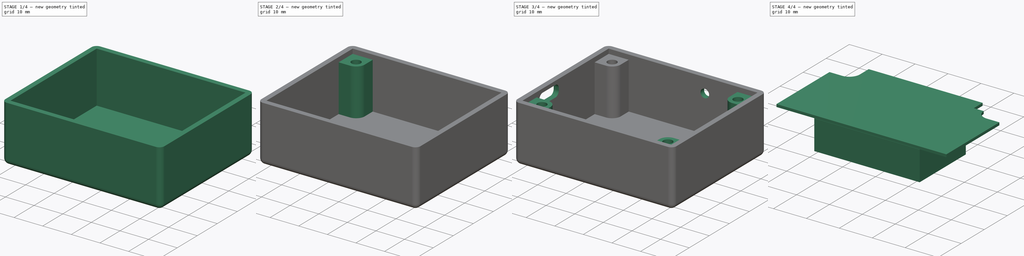
[diagram: build sequence overview — one tinted view per stage of 4, left to right]
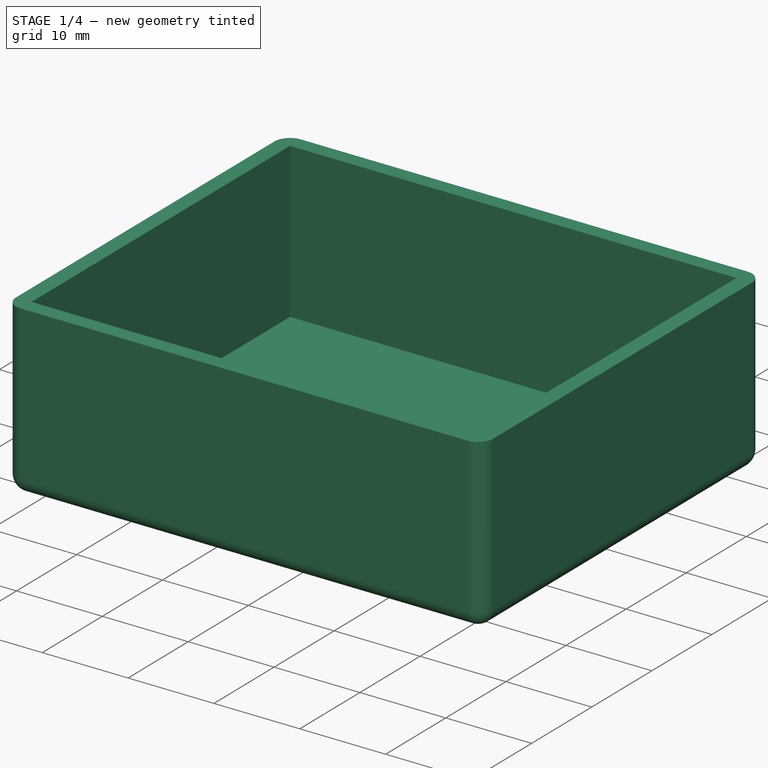
[diagram: stage 1 of 4 — iso view after this stage's code; geometry added in this stage tinted green]
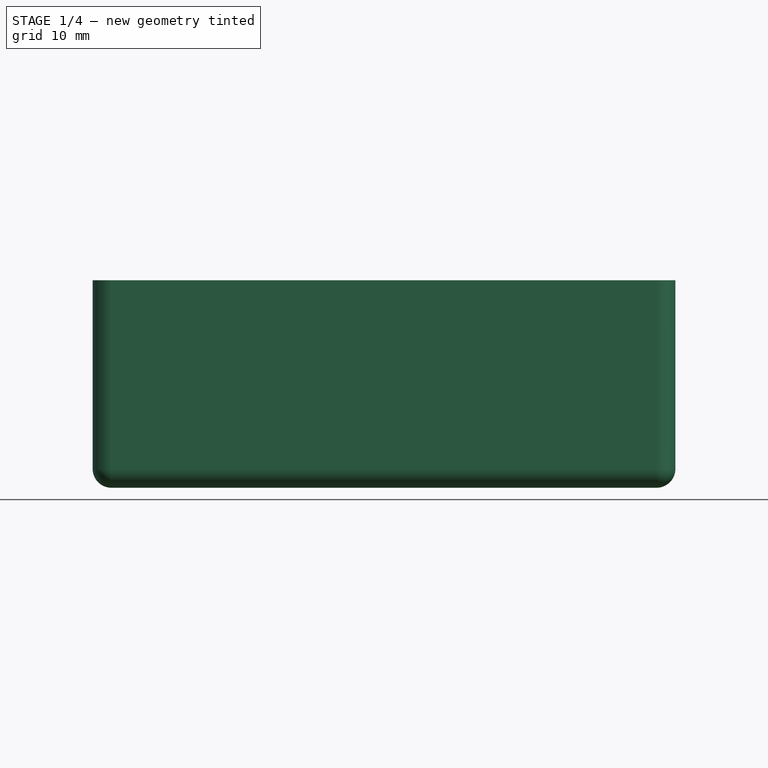
[diagram: stage 1 of 4 — front view after this stage's code; geometry added in this stage tinted green]
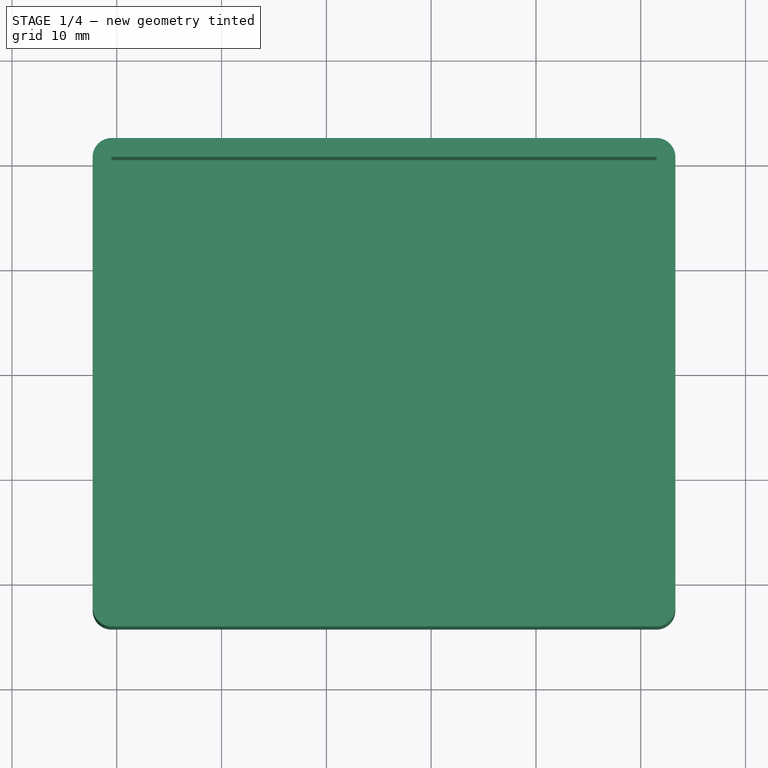
[diagram: stage 1 of 4 — top view after this stage's code; geometry added in this stage tinted green]
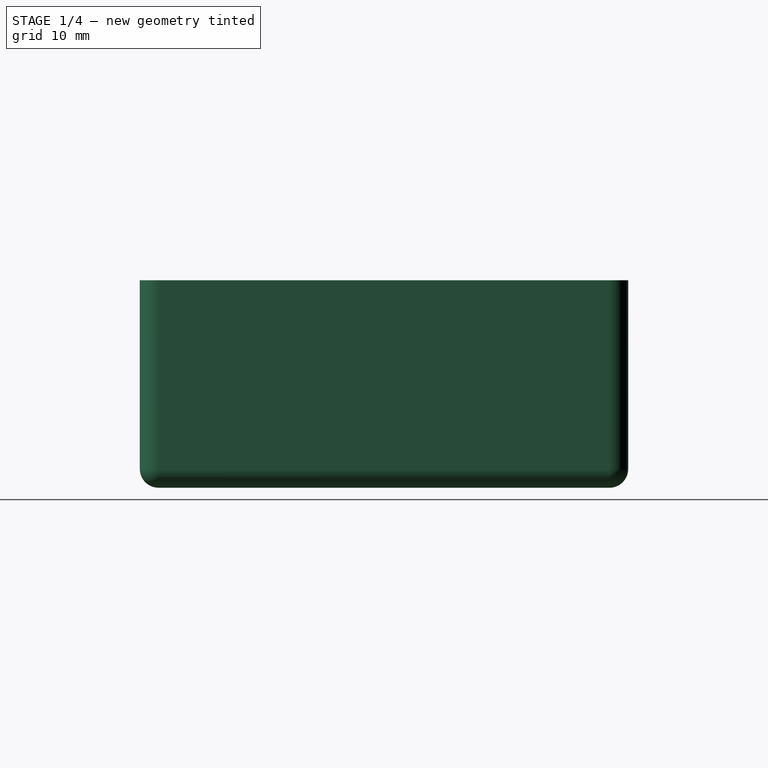
[diagram: stage 1 of 4 — right view after this stage's code; geometry added in this stage tinted green]
FCSTD DOCUMENT  (FreeCAD 0.20R29603 (Git))
Label: SCuSA_RevB1_case
License: All rights reserved
LicenseURL: http://en.wikipedia.org/wiki/All_rights_reserved
objects: Sketcher::SketchObject×6, PartDesign::SubShapeBinder×4, PartDesign::Pad×3, PartDesign::Pocket×3, PartDesign::Plane×2, PartDesign::Mirrored×2, PartDesign::Body×2, Spreadsheet::Sheet×1, App::Link×1, PartDesign::Thickness×1, Part::Box×1, PartDesign::MultiTransform×1
note: 32 computed .brp shape members not serialized (recipe doc carries the construction recipe); baked Part::Feature solids carry a one-line shape summary decoded from their .brp
EXTERNAL_REF file=SCuSA_RevB1_PCBA.FCStd obj=Board_3e51

FEATURE [Spreadsheet::Sheet] Spreadsheet
  cells = A1=layer_height; B1(layer_height)=0.4; C1=for 3d printing; A2=wall_thickness; B2(wall_thickness)=1.8; A3=pcb_to_wall_clearance; B3(pcb_to_wall_clearance)=0.5; A4=pcb_thickness; B4(pcb_thickness)=1.65; A5=case_bottom_height; B5(case_bottom_height)=18; A6=hex_nut_diameter; B6(hex_nut_diameter)=7.2; A7=hex_nut_pocket_depth; B7(hex_nut_pocket_depth)=10; A8=lid_counter_sunk; B8(lid_counter_sunk)=0.8; A9=lid_layer_height; B9(lid_layer_height)=0.2
FEATURE [App::Link] Link  label="SCuSA"
  LinkPlacement = pos=(0,0,-1.65) rot=(1,0,0;3.14159rad)
  LinkedObject = -> <external SCuSA_RevB1_PCBA.FCStd>#Board_3e51
  Placement = pos=(0,0,-1.65) rot=(1,0,0;3.14159rad)
  expr: .Placement.Base.z = -Spreadsheet.pcb_thickness
FEATURE [PartDesign::SubShapeBinder] Binder  label="PCBBinder"
  BindCopyOnChange = 0
  BindMode = 0
  ClaimChildren = false
  Context = -> Body [Binder.]
  Fuse = false
  MakeFace = true
  OffsetFill = false
  OffsetIntersection = false
  OffsetJoinType = 0
  OffsetOpenResult = false
  PartialLoad = false
  Relative = true
  Support = -> [Link[Board_Geoms_3e51.Pcb_3e51.Face64]]
  _Version = 2
FEATURE [Sketcher::SketchObject] Sketch  label="InnerWallsSketch"
  ExternalGeometry = -> [Binder]
  FullyConstrained = true
  MapMode = 5
  Support = -> [XY_Plane]
  expr: Constraints[21] = Spreadsheet.pcb_to_wall_clearance
  sketch-geometry (8):
    g0: LineSegment StartX=-0.5 StartY=0.5 StartZ=0 EndX=51.5 EndY=0.5 EndZ=0
    g1: LineSegment StartX=51.5 StartY=0.5 StartZ=0 EndX=51.5 EndY=-42.5 EndZ=0
    g2: LineSegment StartX=51.5 StartY=-42.5 StartZ=0 EndX=-0.5 EndY=-42.5 EndZ=0
    g3: LineSegment StartX=-0.5 StartY=-42.5 StartZ=0 EndX=-0.5 EndY=0.5 EndZ=0
    g4: LineSegment StartX=51 StartY=-42 StartZ=0 EndX=51.5 EndY=-42 EndZ=0
    g5: LineSegment StartX=51 StartY=-42.5 StartZ=0 EndX=51 EndY=-42 EndZ=0
    g6: LineSegment StartX=0 StartY=0 StartZ=0 EndX=-0.5 EndY=0 EndZ=0
    g7: LineSegment StartX=0 StartY=0.5 StartZ=0 EndX=0 EndY=0 EndZ=0
  constraints (24):
    c: Coincident(g0,g1)
    c: Coincident(g1,g2)
    c: Coincident(g2,g3)
    c: Coincident(g3,g0)
    c: Horizontal(g0)
    c: Horizontal(g2)
    c: Vertical(g1)
    c: Vertical(g3)
    c: PointOnObject(g4,g1)
    c: Horizontal(g4)
    c: PointOnObject(g5,g2)
    c: Coincident(g5,g4)
    c: Coincident(g6,g-6)
    c: PointOnObject(g6,g3)
    c: Horizontal(g6)
    c: PointOnObject(g7,g0)
    c: Coincident(g7,g6)
    c: Vertical(g7)
    c: Equal(g4,g5)
    c: Equal(g5,g6)
    c: Equal(g6,g7)
    c: DistanceX(g6,g6) = 0.5
    c: Coincident(g4,g-4)
    c: Vertical(g5)
FEATURE [PartDesign::Pad] Pad  label="InnerWallsPad"
  Direction = (0,0,1)
  Length = 18
  Length2 = 10
  Profile = -> Sketch
  ReferenceAxis = -> Sketch [N_Axis]
  Reversed = true
  Type = 0
  expr: Length = Spreadsheet.case_bottom_height
FEATURE [PartDesign::Thickness] Thickness  label="OuterWallsThickness"
  Base = -> Pad [Face5]
  BaseFeature = -> Pad
  Intersection = false
  Join = 0
  Mode = 0
  SupportTransform = false
  Value = 1.8
  expr: Value = Spreadsheet.wall_thickness
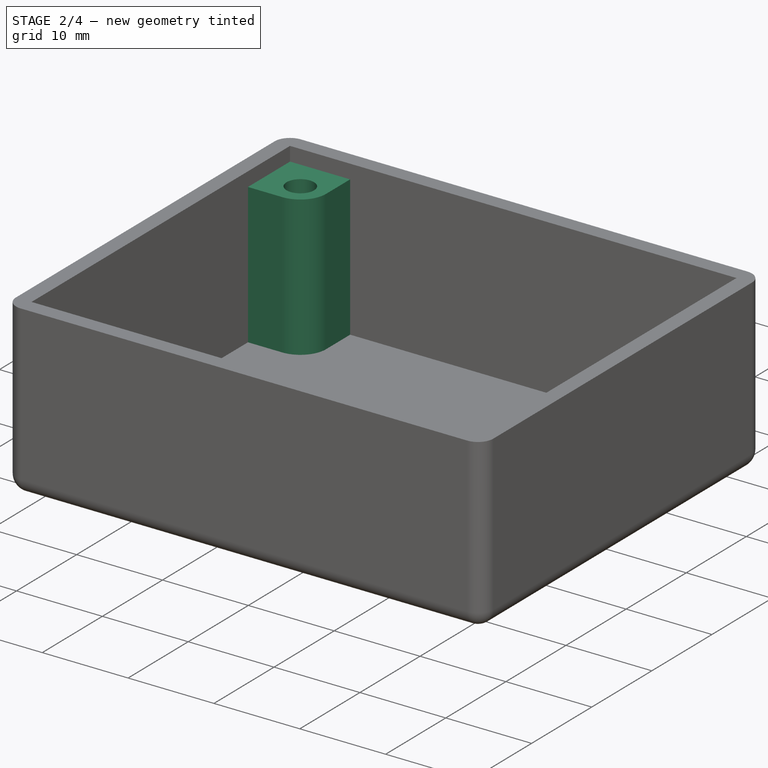
[diagram: stage 2 of 4 — iso view after this stage's code; geometry added in this stage tinted green]
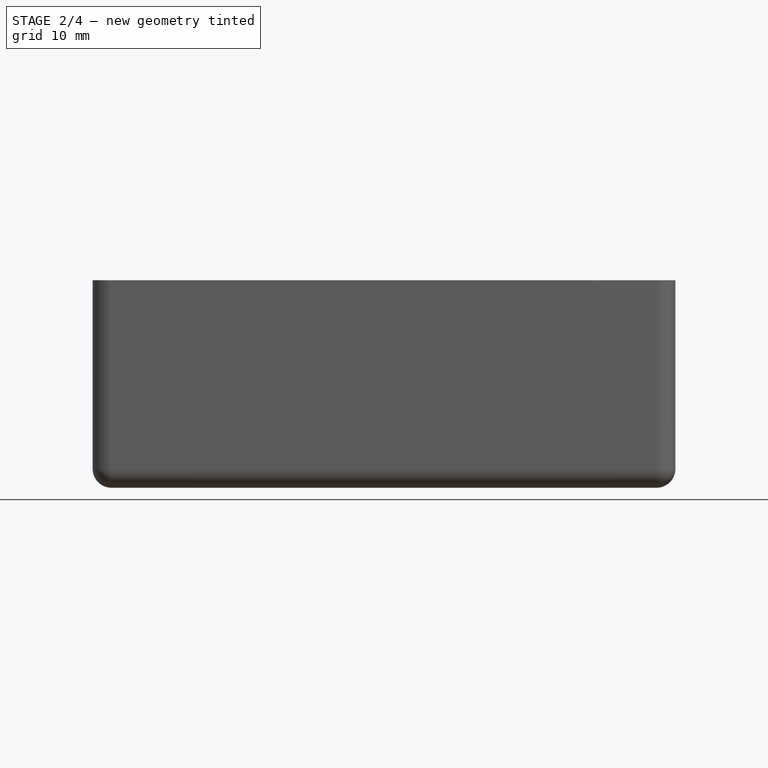
[diagram: stage 2 of 4 — front view after this stage's code; geometry added in this stage tinted green]
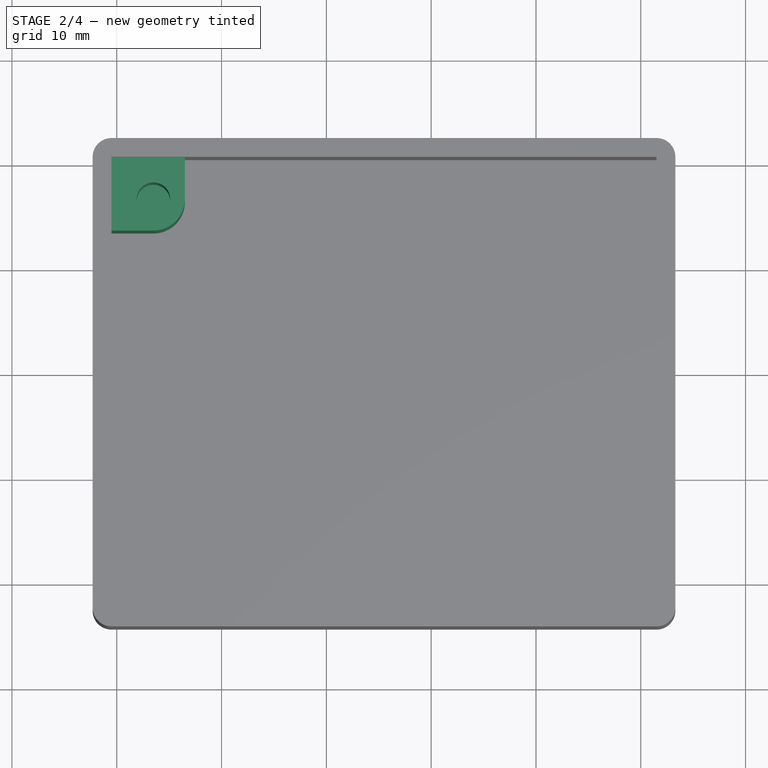
[diagram: stage 2 of 4 — top view after this stage's code; geometry added in this stage tinted green]
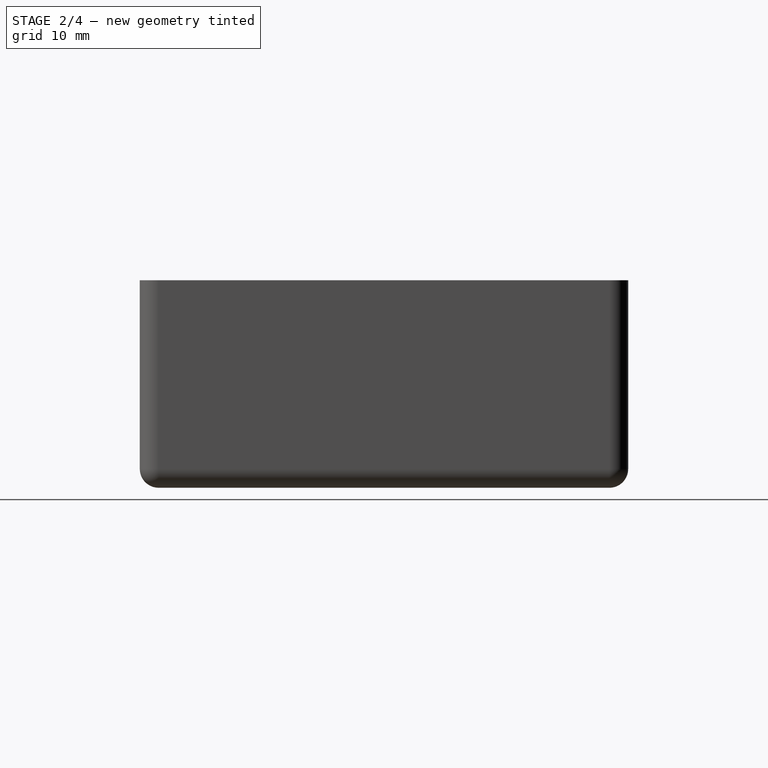
[diagram: stage 2 of 4 — right view after this stage's code; geometry added in this stage tinted green]
FEATURE [Sketcher::SketchObject] Sketch001  label="PCBSupportSketch"
  AttachmentOffset = pos=(0,0,-18) rot=(0,0,1;0rad)
  ExternalGeometry = -> [Thickness,Binder]
  FullyConstrained = true
  MapMode = 5
  Placement = pos=(0,0,-18) rot=(0,0,1;0rad)
  Support = -> [XY_Plane]
  expr: .AttachmentOffset.Base.z = -Spreadsheet.case_bottom_height
  sketch-geometry (5):
    g0: ArcOfCircle CenterX=3.5 CenterY=-3.5 CenterZ=0 NormalX=0 NormalY=0 NormalZ=1 AngleXU=0 Radius=3 StartAngle=4.71239 EndAngle=6.28319
    g1: LineSegment StartX=3.5 StartY=-6.5 StartZ=0 EndX=-0.5 EndY=-6.5 EndZ=0
    g2: LineSegment StartX=6.5 StartY=-3.5 StartZ=0 EndX=6.5 EndY=0.5 EndZ=0
    g3: LineSegment StartX=-0.5 StartY=-6.5 StartZ=0 EndX=-0.5 EndY=0.5 EndZ=0
    g4: LineSegment StartX=-0.5 StartY=0.5 StartZ=0 EndX=6.5 EndY=0.5 EndZ=0
  constraints (14):
    c: Coincident(g1,g0)
    c: PointOnObject(g1,g-4)
    c: Horizontal(g1)
    c: Coincident(g2,g0)
    c: PointOnObject(g2,g-3)
    c: Vertical(g2)
    c: Equal(g2,g1)
    c: Coincident(g0,g-5)
    c: Angle(g0) = 1.5708
    c: Radius(g0) = 3
    c: Coincident(g3,g1)
    c: Coincident(g3,g-4)
    c: Coincident(g4,g3)
    c: Coincident(g4,g2)
FEATURE [PartDesign::Plane] DatumPlane  label="MirrorXDatumPlane"
  AttachmentOffset = pos=(0,0,0) rot=(1,0,0;1.5708rad)
  Length = 78.5758
  MapMode = 45
  Placement = pos=(25.5,-21,-0.05) rot=(0.57735,0.57735,0.57735;2.0944rad)
  ResizeMode = 0
  Support = -> [Binder]
  Width = 61.5758
FEATURE [PartDesign::Plane] DatumPlane001  label="MirrorYDatumPlane"
  AttachmentOffset = pos=(0,0,0) rot=(0,1,0;1.5708rad)
  Length = 62.3288
  MapMode = 45
  Placement = pos=(25.5,-21,-0.05) rot=(-0.57735,0.57735,0.57735;2.0944rad)
  ResizeMode = 0
  Support = -> [Binder]
  Width = 88.3288
FEATURE [PartDesign::Pad] Pad001  label="PCBSupportPad"
  BaseFeature = -> Thickness
  Direction = (0,0,1)
  Length = 16.35
  Length2 = 10
  Profile = -> Sketch001
  ReferenceAxis = -> Sketch001 [N_Axis]
  Type = 0
  expr: Length = Spreadsheet.case_bottom_height - Spreadsheet.pcb_thickness
FEATURE [Sketcher::SketchObject] Sketch002  label="ScrewHoleSketch"
  ExternalGeometry = -> [Binder]
  FullyConstrained = true
  MapMode = 5
  Support = -> [XY_Plane]
  sketch-geometry (1):
    g0: Circle CenterX=3.5 CenterY=-3.5 CenterZ=0 NormalX=0 NormalY=0 NormalZ=1 AngleXU=0 Radius=1.6
  constraints (2):
    c: Coincident(g0,g-4)
    c: PointOnObject(g-3,g0)
FEATURE [PartDesign::Pocket] Pocket  label="ScrewHolePocket"
  BaseFeature = -> Pad001
  Direction = (0,0,-1)
  Length = 15
  Length2 = 5
  Profile = -> Sketch002
  ReferenceAxis = -> Sketch002 [N_Axis]
  Type = 0
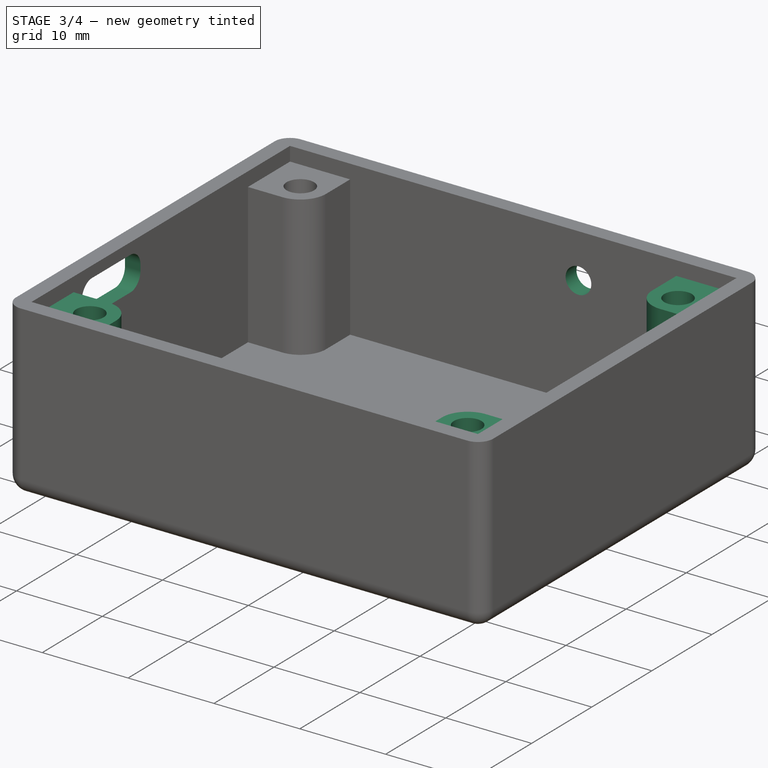
[diagram: stage 3 of 4 — iso view after this stage's code; geometry added in this stage tinted green]
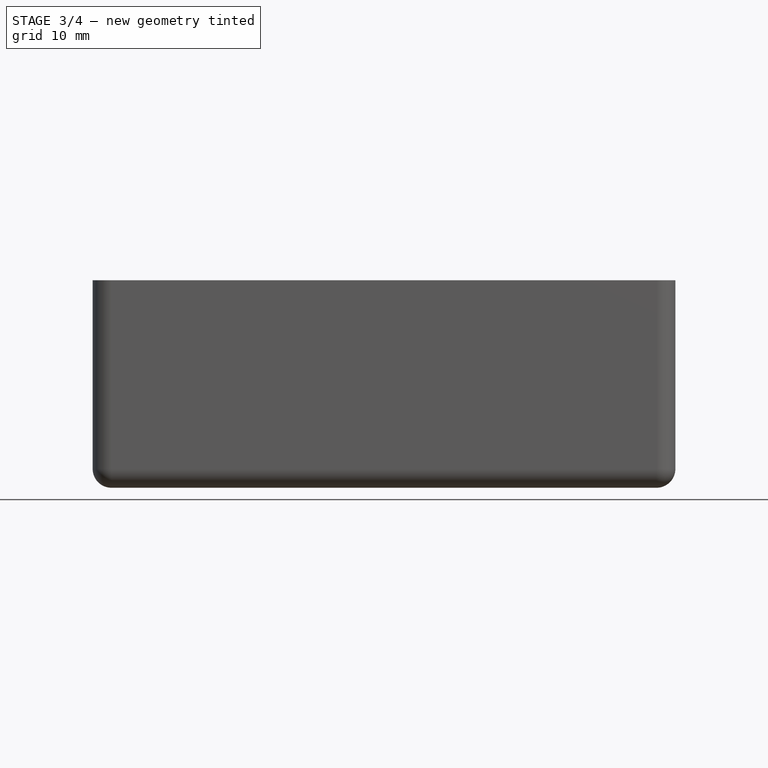
[diagram: stage 3 of 4 — front view after this stage's code; geometry added in this stage tinted green]
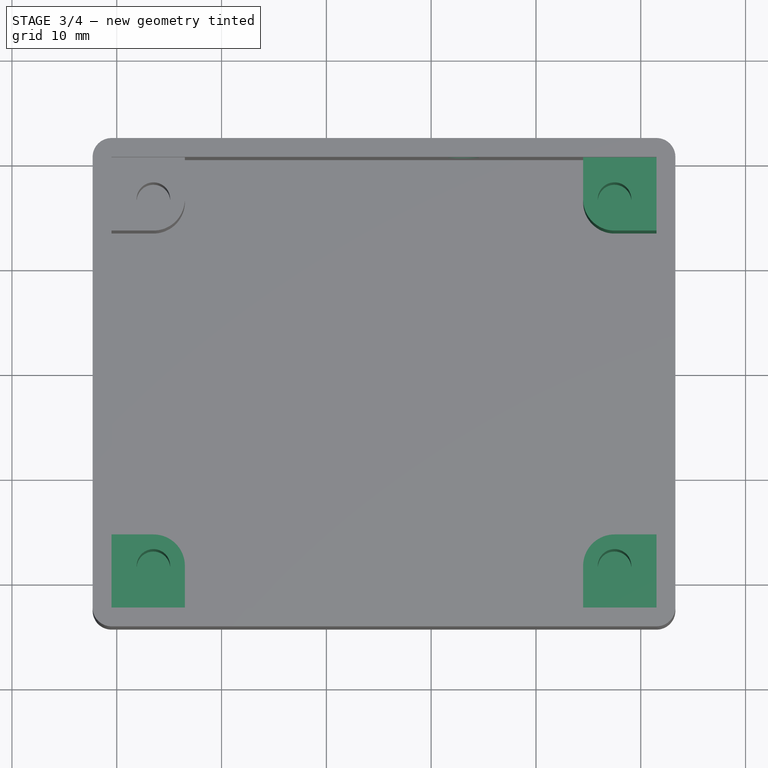
[diagram: stage 3 of 4 — top view after this stage's code; geometry added in this stage tinted green]
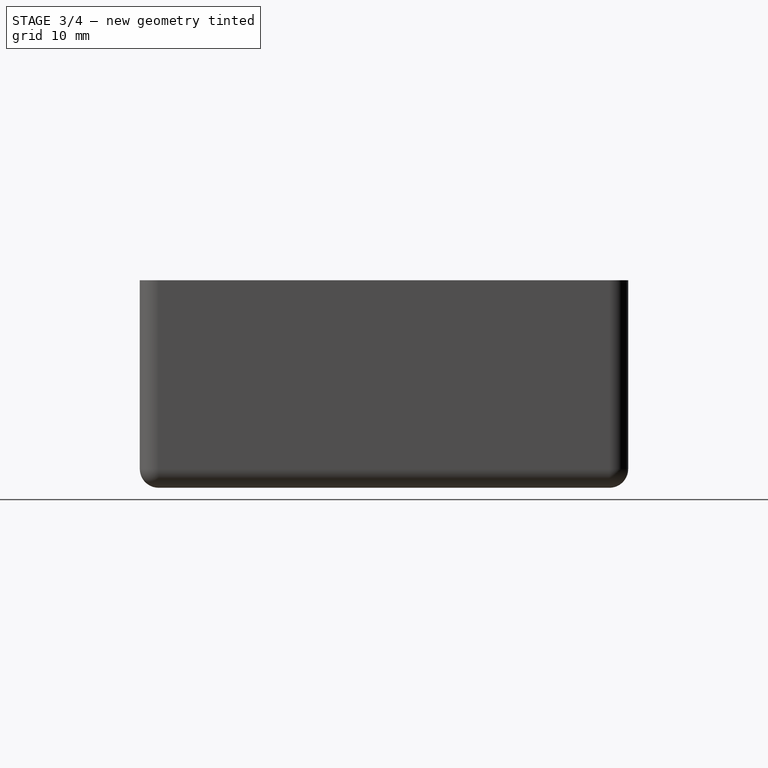
[diagram: stage 3 of 4 — right view after this stage's code; geometry added in this stage tinted green]
FEATURE [PartDesign::Mirrored] Mirrored
  MirrorPlane = -> DatumPlane
FEATURE [PartDesign::Mirrored] Mirrored001
  MirrorPlane = -> DatumPlane001
FEATURE [PartDesign::MultiTransform] MultiTransform
  BaseFeature = -> Pocket
  Originals = -> [Pad001,Pocket]
  Transformations = -> [Mirrored,Mirrored001]
FEATURE [PartDesign::SubShapeBinder] Binder001  label="USBBinder"
  BindCopyOnChange = 0
  BindMode = 0
  ClaimChildren = false
  Context = -> Body [Binder001.]
  Fuse = false
  MakeFace = true
  OffsetFill = false
  OffsetIntersection = false
  OffsetJoinType = 0
  OffsetOpenResult = false
  PartialLoad = false
  Relative = true
  Support = -> [Link[Step_Models_3e51.Top_3e51.USB4135_GF_A.Part__Feature.Edge799,Step_Models_3e51.Top_3e51.USB4135_GF_A.Part__Feature.Edge882,Step_Models_3e51.Top_3e51.USB4135_GF_A.Part__Feature.Edge795,Step_Models_3e51.Top_3e51.USB4135_GF_A.Part__Feature.Edge881,Step_Models_3e51.Top_3e51.USB4135_GF_A.Part__Feature.Edge704,Step_Models_3e51.Top_3e51.USB4135_GF_A.Part__Feature.Edge569,Step_Models_3e51.Top_3e51.USB4135_GF_A.Part__Feature.Edge602,Step_Models_3e51.Top_3e51.USB4135_GF_A.Part__Feature.Edge714]]
  _Version = 2
FEATURE [Sketcher::SketchObject] Sketch003  label="USBSketch"
  ExternalGeometry = -> [Binder001]
  FullyConstrained = true
  MapMode = 5
  Placement = pos=(0,0,0) rot=(0.57735,0.57735,0.57735;2.0944rad)
  Support = -> [YZ_Plane]
  sketch-geometry (16):
    g0: ArcOfCircle CenterX=-32.44 CenterY=-3.005 CenterZ=0 NormalX=0 NormalY=0 NormalZ=1 AngleXU=0 Radius=1.68 StartAngle=1.5708 EndAngle=3.14159
    g1: ArcOfCircle CenterX=-32.47 CenterY=-3.635 CenterZ=0 NormalX=0 NormalY=0 NormalZ=1 AngleXU=0 Radius=1.65 StartAngle=3.14159 EndAngle=4.71239
    g2: ArcOfCircle CenterX=-26.03 CenterY=-3.635 CenterZ=0 NormalX=0 NormalY=0 NormalZ=1 AngleXU=0 Radius=1.65 StartAngle=4.71239 EndAngle=6.28319
    g3: ArcOfCircle CenterX=-26.06 CenterY=-3.005 CenterZ=0 NormalX=0 NormalY=0 NormalZ=1 AngleXU=0 Radius=1.68 StartAngle=1e-16 EndAngle=1.5708
    g4: LineSegment StartX=-32.44 StartY=-1.725 StartZ=0 EndX=-32.44 EndY=-1.325 EndZ=0
    g5: LineSegment StartX=-32.47 StartY=-4.885 StartZ=0 EndX=-32.47 EndY=-5.285 EndZ=0
    g6: LineSegment StartX=-26.03 StartY=-4.885 StartZ=0 EndX=-26.03 EndY=-5.285 EndZ=0
    g7: LineSegment StartX=-26.06 StartY=-1.725 StartZ=0 EndX=-26.06 EndY=-1.325 EndZ=0
    g8: LineSegment StartX=-34.12 StartY=-3.005 StartZ=0 EndX=-33.72 EndY=-3.005 EndZ=0
    g9: LineSegment StartX=-33.72 StartY=-3.635 StartZ=0 EndX=-34.12 EndY=-3.635 EndZ=0
    g10: LineSegment StartX=-24.78 StartY=-3.635 StartZ=0 EndX=-24.38 EndY=-3.635 EndZ=0
    g11: LineSegment StartX=-24.38 StartY=-3.005 StartZ=0 EndX=-24.78 EndY=-3.005 EndZ=0
    g12: LineSegment StartX=-34.12 StartY=-3.005 StartZ=0 EndX=-34.12 EndY=-3.635 EndZ=0
    g13: LineSegment StartX=-24.38 StartY=-3.005 StartZ=0 EndX=-24.38 EndY=-3.635 EndZ=0
    g14: LineSegment StartX=-32.44 StartY=-1.325 StartZ=0 EndX=-26.06 EndY=-1.325 EndZ=0
    g15: LineSegment StartX=-32.47 StartY=-5.285 StartZ=0 EndX=-26.03 EndY=-5.285 EndZ=0
  constraints (40):
    c: Coincident(g2,g-9)
    c: Coincident(g3,g-8)
    c: Coincident(g4,g-4)
    c: Coincident(g4,g0)
    c: Coincident(g5,g-6)
    c: Coincident(g5,g1)
    c: Vertical(g5)
    c: Coincident(g6,g-9)
    c: Coincident(g6,g2)
    c: Coincident(g7,g-8)
    c: Coincident(g7,g3)
    c: Vertical(g4)
    c: Vertical(g7)
    c: Vertical(g6)
    c: Coincident(g8,g0)
    c: Coincident(g8,g-4)
    c: Horizontal(g8)
    c: Coincident(g9,g-5)
    c: Coincident(g9,g1)
    c: Horizontal(g9)
    c: Coincident(g10,g-9)
    c: Coincident(g10,g2)
    c: Horizontal(g10)
    c: Coincident(g11,g3)
    c: Coincident(g11,g-8)
    c: Horizontal(g11)
    c: Equal(g8,g9)
    c: Equal(g5,g6)
    c: Equal(g10,g11)
    c: Coincident(g12,g0)
    c: Coincident(g12,g1)
    c: Coincident(g13,g3)
    c: Coincident(g13,g2)
    c: Coincident(g14,g3)
    c: Coincident(g15,g1)
    c: Coincident(g15,g2)
    c: Coincident(g0,g14)
    c: DistanceY(g4,g4) = 0.4
    c: Coincident(g0,g-4)
    c: Coincident(g1,g-5)
FEATURE [PartDesign::Pocket] Pocket001  label="USBCutoutPocket"
  BaseFeature = -> MultiTransform
  Direction = (-1,2e-16,-3e-16)
  Length = 5
  Length2 = 5
  Profile = -> Sketch003
  ReferenceAxis = -> Sketch003 [N_Axis]
  Type = 1
FEATURE [PartDesign::Body] Body001  label="Separator"
  Group = -> [Sketch004,Binder002,Pad002]
  Origin = -> Origin001
  Tip = -> Pad002
FEATURE [PartDesign::SubShapeBinder] Binder003  label="PotScrewBinder"
  BindCopyOnChange = 0
  BindMode = 0
  ClaimChildren = false
  Context = -> Body [Binder003.]
  Fuse = false
  MakeFace = true
  OffsetFill = false
  OffsetIntersection = false
  OffsetJoinType = 0
  OffsetOpenResult = false
  PartialLoad = false
  Relative = true
  Support = -> [Link[Step_Models_3e51.Top_3e51.Shape010.Edge63,Step_Models_3e51.Top_3e51.Shape010.Edge57]]
  _Version = 2
FEATURE [Sketcher::SketchObject] Sketch005  label="PotScrewSketch"
  ExternalGeometry = -> [Binder003]
  FullyConstrained = true
  MapMode = 5
  Placement = pos=(0,0,0) rot=(0,0.707107,0.707107;3.14159rad)
  Support = -> [XZ_Plane]
  sketch-geometry (2):
    g0: Circle CenterX=-33.095 CenterY=-5.19 CenterZ=0 NormalX=0 NormalY=0 NormalZ=1 AngleXU=0 Radius=1.495
    g1: LineSegment StartX=-33.095 StartY=-5.19 StartZ=0 EndX=-31.6462 EndY=-4.82137 EndZ=0
  constraints (5):
    c: Coincident(g0,g-4)
    c: Coincident(g1,g0)
    c: PointOnObject(g1,g0)
    c: PointOnObject(g-3,g1)
    c: Distance(g-3,g1) = 0.4
FEATURE [PartDesign::Pocket] Pocket002  label="PotScrewPocket"
  BaseFeature = -> Pocket001
  Direction = (0,-1,-2e-16)
  Length = 5
  Length2 = 5
  Profile = -> Sketch005
  ReferenceAxis = -> Sketch005 [N_Axis]
  Reversed = true
  Type = 1
FEATURE [PartDesign::Body] Body  label="CaseBottom"
  Group = -> [Sketch,Binder,Pad,Thickness,Sketch001,DatumPlane,DatumPlane001,Pad001,Sketch002,Pocket,MultiTransform,Mirrored,Mirrored001,Binder001,Sketch003,Pocket001,Binder003,Sketch005,Pocket002]
  Origin = -> Origin
  Tip = -> Pocket002
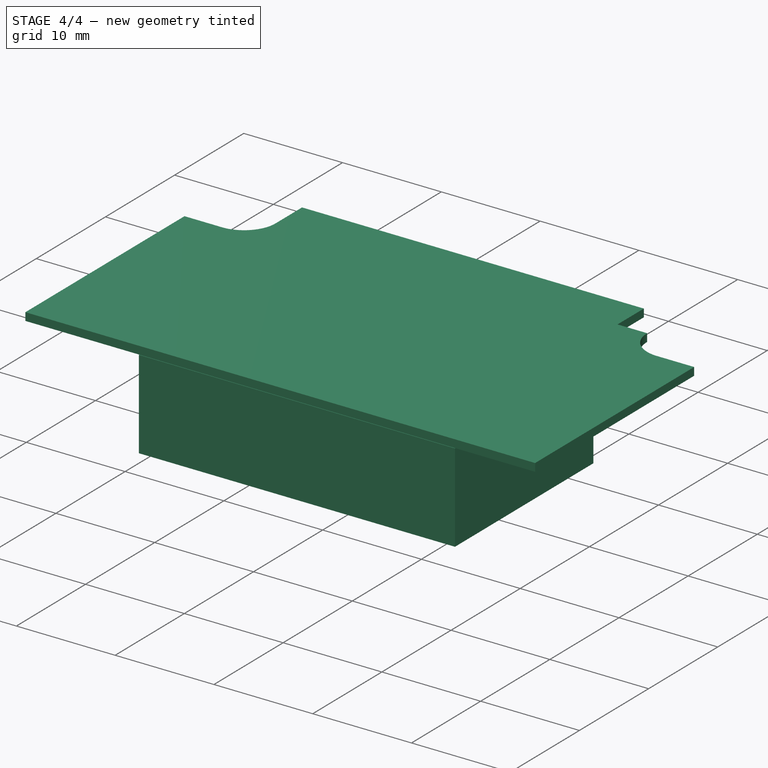
[diagram: stage 4 of 4 — iso view after this stage's code; geometry added in this stage tinted green]
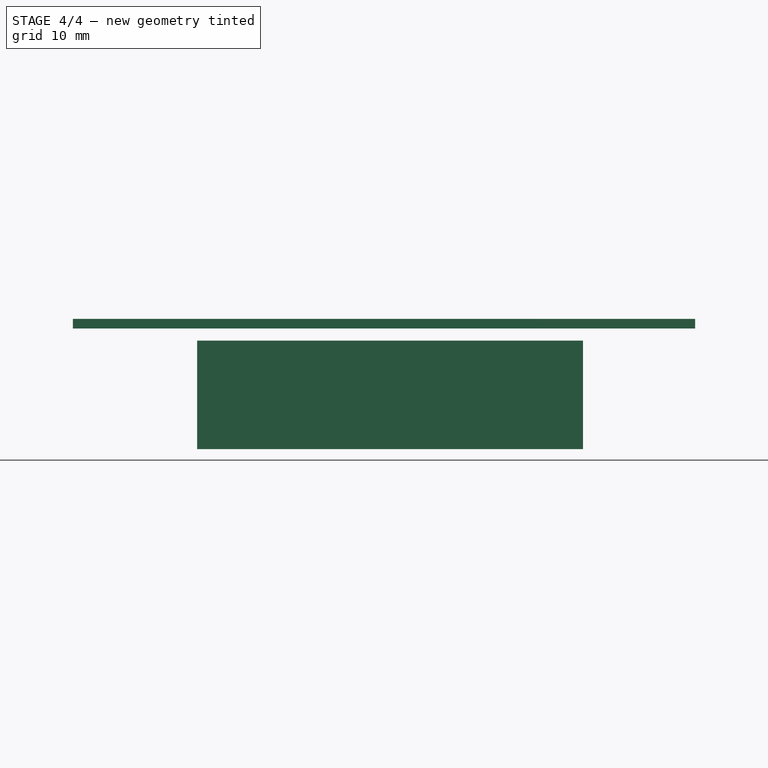
[diagram: stage 4 of 4 — front view after this stage's code; geometry added in this stage tinted green]
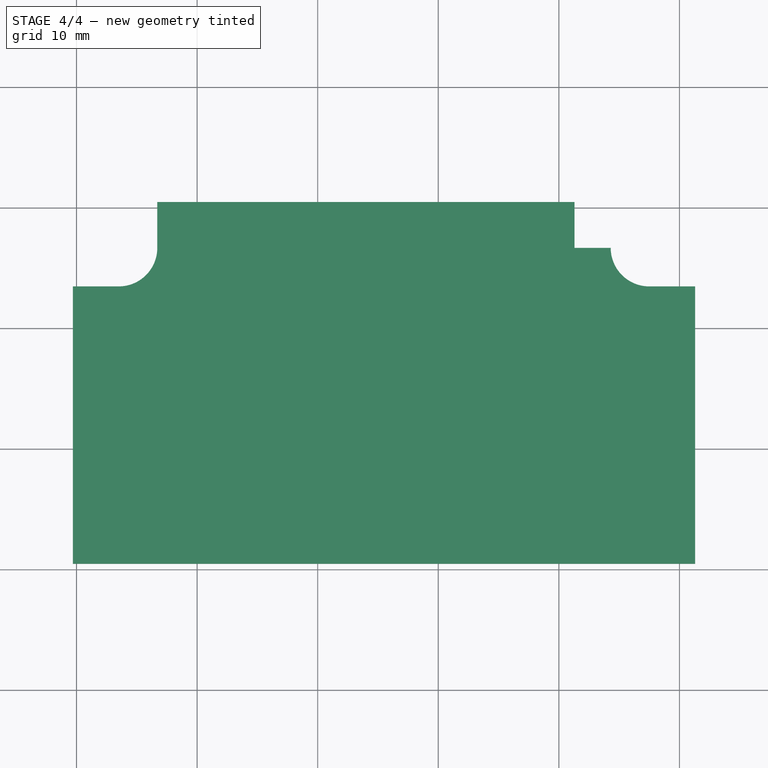
[diagram: stage 4 of 4 — top view after this stage's code; geometry added in this stage tinted green]
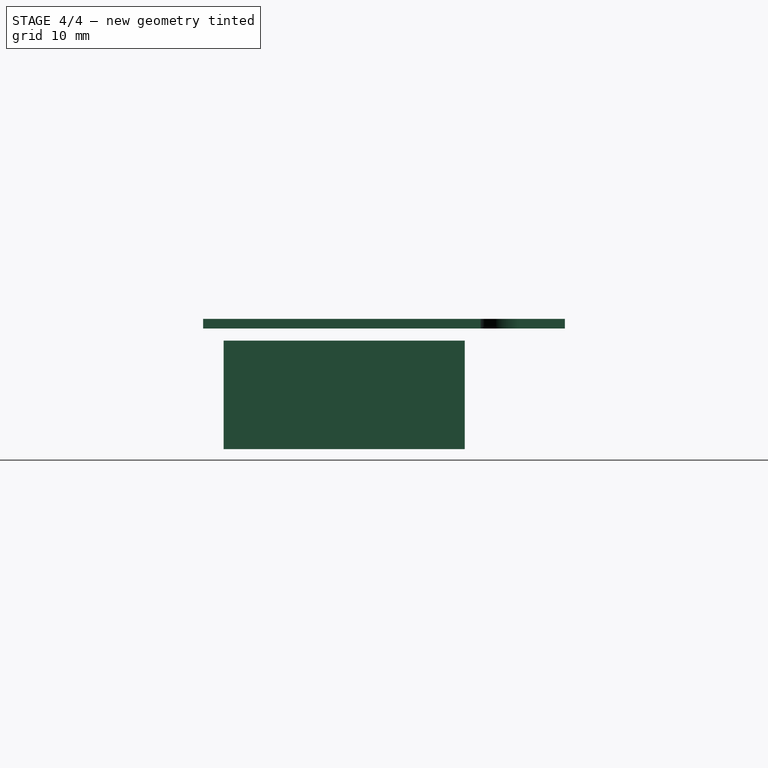
[diagram: stage 4 of 4 — right view after this stage's code; geometry added in this stage tinted green]
FEATURE [Part::Box] Box  label="LiPo_Battery"
  AttacherType = Attacher::AttachEngine3D
  Height = 9
  Length = 32
  Placement = pos=(10,-28,-18) rot=(0,0,1;0rad)
  Width = 20
  expr: .Placement.Base.z = -Spreadsheet.case_bottom_height
FEATURE [PartDesign::SubShapeBinder] Binder002
  BindCopyOnChange = 0
  BindMode = 0
  ClaimChildren = false
  Context = -> Body001 [Binder002.]
  Fuse = false
  MakeFace = true
  OffsetFill = false
  OffsetIntersection = false
  OffsetJoinType = 0
  OffsetOpenResult = false
  PartialLoad = false
  Relative = true
  Support = -> [Body[Pocket001.Face4,Pocket001.Face19,Pocket001.Face32,Pocket001.Face8,Pocket001.Edge1,Pocket001.Edge9,Pocket001.Edge10,Pocket001.Edge11]]
  _Version = 2
FEATURE [Sketcher::SketchObject] Sketch004
  AttachmentOffset = pos=(0,0,-8) rot=(0,0,1;0rad)
  ExternalGeometry = -> [Binder002]
  FullyConstrained = true
  MapMode = 5
  Placement = pos=(0,0,-8) rot=(0,0,1;0rad)
  Support = -> [XY_Plane001]
  sketch-geometry (18):
    g0: LineSegment StartX=6.7 StartY=0.3 StartZ=0 EndX=44.3 EndY=0.3 EndZ=0
    g1: LineSegment StartX=-0.3 StartY=-6.7 StartZ=0 EndX=-0.3 EndY=-29.7 EndZ=0
    g2: LineSegment StartX=-0.3 StartY=-29.7 StartZ=0 EndX=51.3 EndY=-29.7 EndZ=0
    g3: LineSegment StartX=51.3 StartY=-29.7 StartZ=0 EndX=51.3 EndY=-6.7 EndZ=0
    g4: LineSegment StartX=51.3 StartY=-6.7 StartZ=0 EndX=47.5 EndY=-6.7 EndZ=0
    g5: ArcOfCircle CenterX=3.5 CenterY=-3.5 CenterZ=0 NormalX=0 NormalY=0 NormalZ=1 AngleXU=0 Radius=3.2 StartAngle=4.71239 EndAngle=6.28319
    g6: ArcOfCircle CenterX=47.5 CenterY=-3.5 CenterZ=0 NormalX=0 NormalY=0 NormalZ=1 AngleXU=0 Radius=3.2 StartAngle=3.14159 EndAngle=4.71239
    g7: LineSegment StartX=6.7 StartY=-3.5 StartZ=0 EndX=6.7 EndY=0.3 EndZ=0
    g8: LineSegment StartX=44.3 StartY=0.3 StartZ=0 EndX=44.3 EndY=-3.5 EndZ=0
    g9: LineSegment StartX=3.5 StartY=-6.7 StartZ=0 EndX=-0.3 EndY=-6.7 EndZ=0
    g10: LineSegment StartX=6.7 StartY=0.3 StartZ=0 EndX=6.7 EndY=0.5 EndZ=0
    g11: LineSegment StartX=6.5 StartY=-3.5 StartZ=0 EndX=6.7 EndY=-3.5 EndZ=0
    g12: LineSegment StartX=44.5 StartY=-3.5 StartZ=0 EndX=44.3 EndY=-3.5 EndZ=0
    g13: LineSegment StartX=3.5 StartY=-6.7 StartZ=0 EndX=3.5 EndY=-6.5 EndZ=0
    g14: LineSegment StartX=47.5 StartY=-6.5 StartZ=0 EndX=47.5 EndY=-6.7 EndZ=0
    g15: LineSegment StartX=6.7 StartY=0.3 StartZ=0 EndX=41.3 EndY=0.3 EndZ=0
    g16: LineSegment StartX=41.3 StartY=0.3 StartZ=0 EndX=41.3 EndY=-3.5 EndZ=0
    g17: LineSegment StartX=41.3 StartY=-3.5 StartZ=0 EndX=44.3 EndY=-3.5 EndZ=0
  constraints (49):
    c: Horizontal(g0)
    c: Vertical(g1)
    c: Coincident(g2,g1)
    c: Horizontal(g2)
    c: Coincident(g3,g2)
    c: Vertical(g3)
    c: Coincident(g4,g3)
    c: Horizontal(g4)
    c: Coincident(g5,g-5)
    c: Coincident(g6,g-9)
    c: Coincident(g6,g4)
    c: Coincident(g7,g5)
    c: Vertical(g7)
    c: Coincident(g8,g0)
    c: Coincident(g8,g6)
    c: Vertical(g8)
    c: Coincident(g0,g7)
    c: Coincident(g9,g5)
    c: Coincident(g9,g1)
    c: Horizontal(g9)
    c: Equal(g9,g4)
    c: Equal(g4,g8)
    c: Equal(g8,g7)
    c: Equal(g5,g6)
    c: Coincident(g10,g0)
    c: PointOnObject(g10,g-7)
    c: Vertical(g10)
    c: Coincident(g11,g-6)
    c: Coincident(g11,g5)
    c: Horizontal(g11)
    c: Coincident(g12,g-9)
    c: Coincident(g12,g6)
    c: Coincident(g13,g5)
    c: Coincident(g13,g-5)
    c: Coincident(g14,g-10)
    c: Coincident(g14,g4)
    c: Vertical(g14)
    c: Vertical(g13)
    c: Equal(g13,g10)
    c: DistanceY(g10,g10) = 0.2
    c: DistanceY(g1,g1) = 23
    c: Coincident(g15,g7)
    c: PointOnObject(g15,g0)
    c: Coincident(g16,g15)
    c: Vertical(g16)
    c: Coincident(g17,g16)
    c: Horizontal(g17)
    c: Coincident(g17,g6)
    c: DistanceX(g17,g17) = 3
FEATURE [PartDesign::Pad] Pad002
  Direction = (0,0,1)
  Length = 0.8
  Length2 = 10
  Profile = -> Sketch004
  ReferenceAxis = -> Sketch004 [N_Axis]
  Type = 0
  expr: Length = 0.8
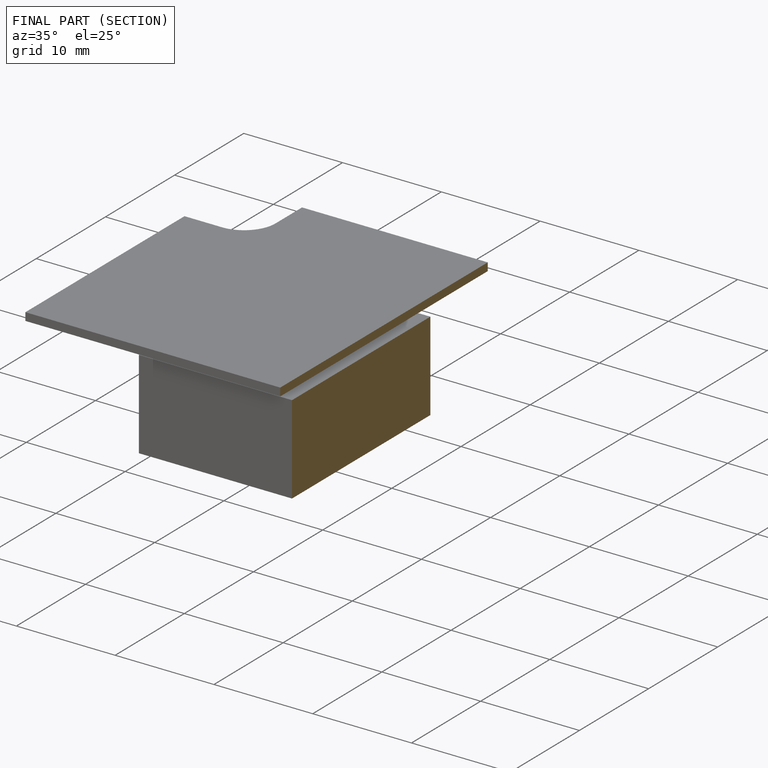
[diagram: finished part — half-section view (interior)]
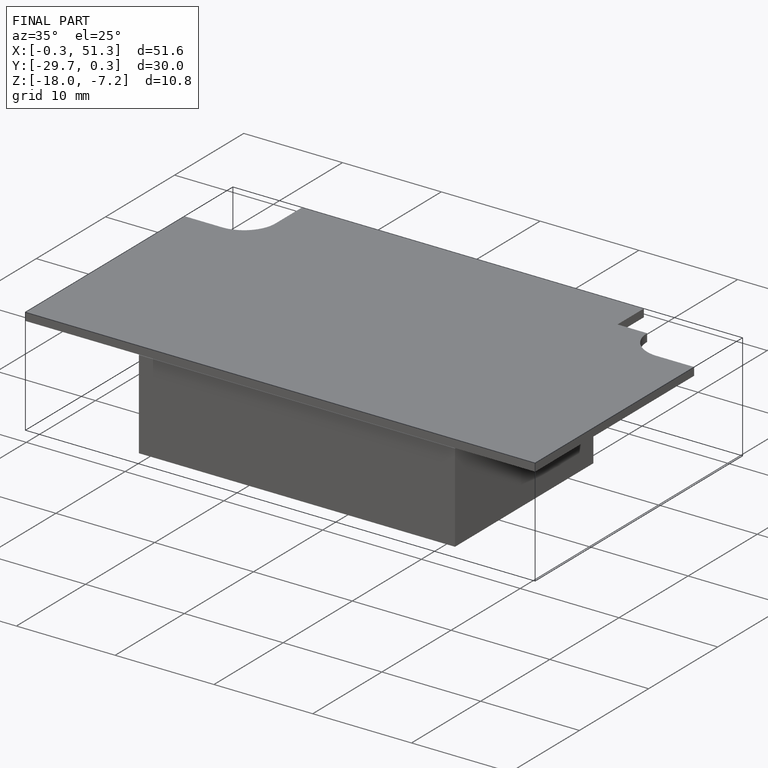
[diagram: finished part — iso view with bounding-box wireframe]
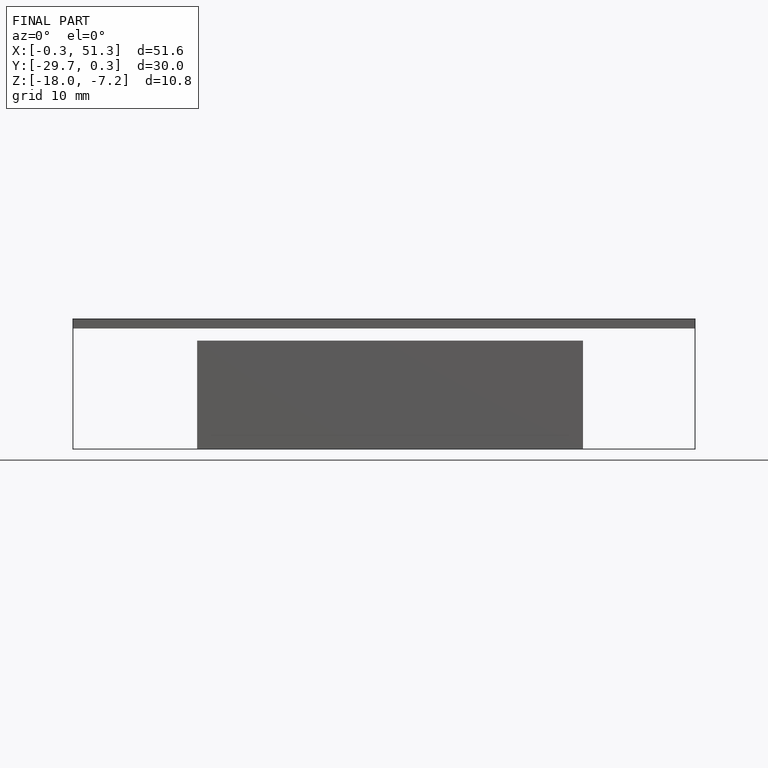
[diagram: finished part — front view with bounding-box wireframe]
